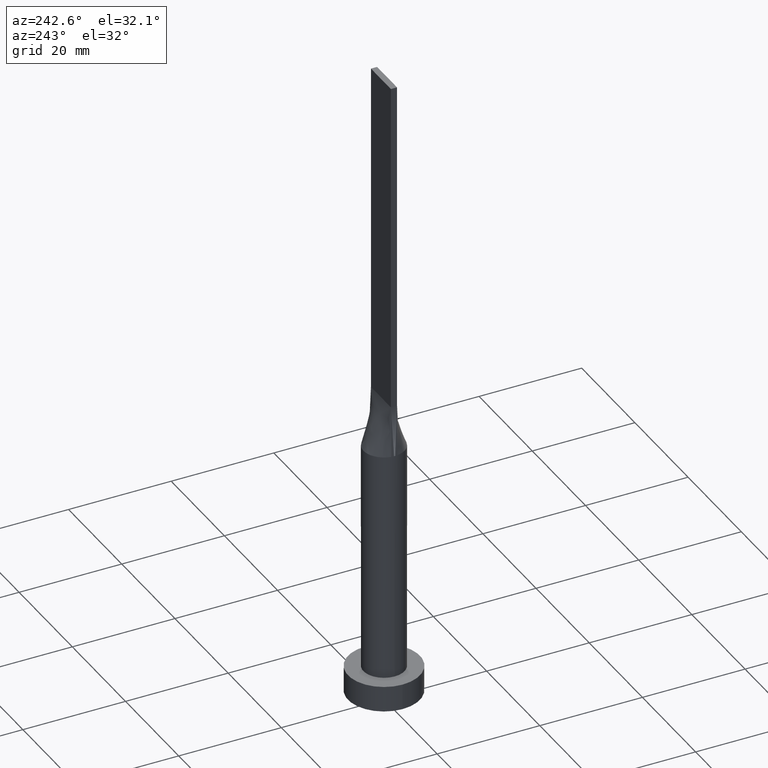
[diagram: clean part render]
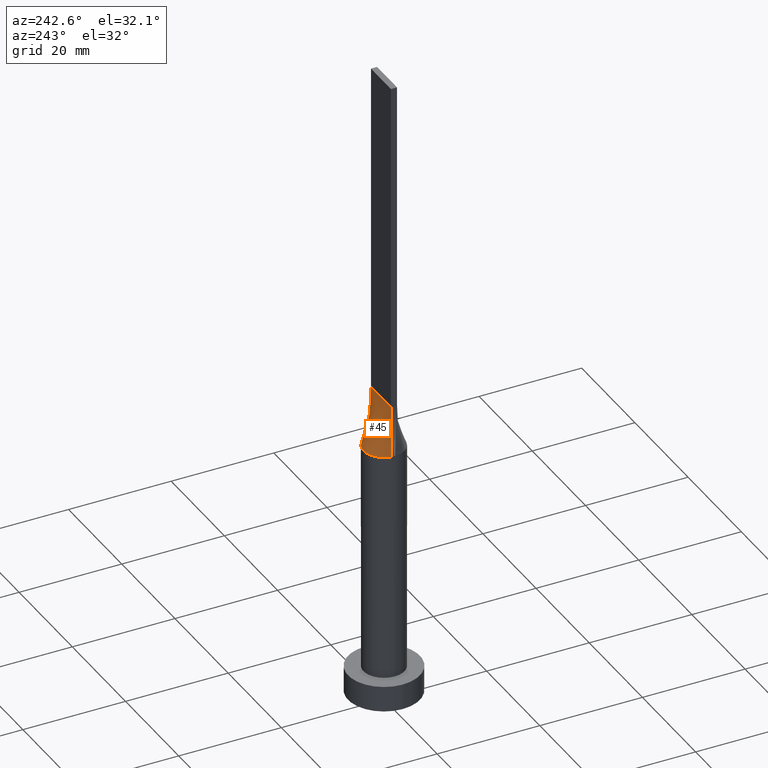
[diagram: same view with one face highlighted and labeled with its STEP entity id]
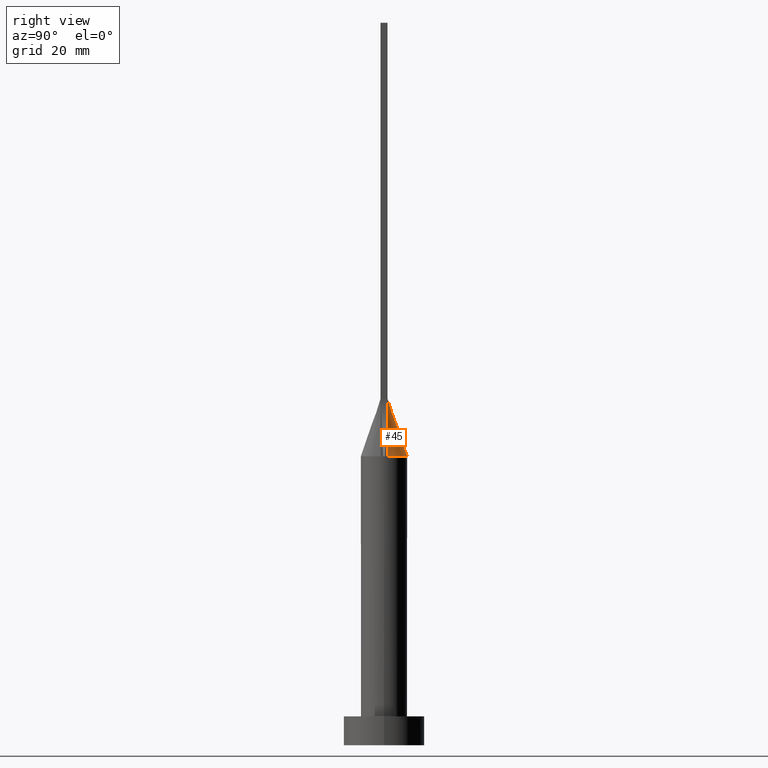
[diagram: same view with one face highlighted and labeled with its STEP entity id]
A machine part, auxiliary view. The second image highlights one B-rep face of the part: STEP entity #45.
A second angle (right view) of the same face is appended — the face is thin or edge-on in the first view.
In plain terms, the highlighted face is a freeform B-spline surface patch.
Its self-contained STEP definition (entity closure, byte-faithful):
#7 = CARTESIAN_POINT ( 'NONE',  ( -2.553164211252348714, 3.116528153703943538, 49.99999999999999289 ) ) ;
#10 = CARTESIAN_POINT ( 'NONE',  ( -3.800365609718893811, 1.311488165564686392, 49.99999999999999289 ) ) ;
#20 = B_SPLINE_SURFACE_WITH_KNOTS ( 'NONE', 3, 1, ( 
 ( #308, #178 ),
 ( #144, #43 ),
 ( #446, #542 ),
 ( #96, #450 ),
 ( #39, #50 ),
 ( #491, #100 ),
 ( #270, #440 ),
 ( #487, #305 ),
 ( #354, #47 ),
 ( #262, #576 ),
 ( #220, #52 ),
 ( #182, #140 ),
 ( #7, #443 ),
 ( #223, #407 ),
 ( #364, #402 ),
 ( #10, #137 ),
 ( #313, #86 ),
 ( #495, #185 ) ),
 .UNSPECIFIED., .F., .F., .F.,
 ( 4, 2, 2, 2, 2, 2, 2, 2, 4 ),
 ( 2, 2 ),
 ( 0.000000000000000000, 0.1249999999999999445, 0.2499999999999998890, 0.3749999999999998335, 0.4999999999999997780, 0.6249999999999997780, 0.7499999999999998890, 0.8749999999999998890, 1.000000000000000000 ),
 ( 0.000000000000000000, 1.000000000000000000 ),
 .UNSPECIFIED. ) ;
#25 = VERTEX_POINT ( 'NONE', #265 ) ;
#33 = CARTESIAN_POINT ( 'NONE',  ( 3.950097303404374038, 0.6320148730971578699, 49.99999999999999289 ) ) ;
#39 = CARTESIAN_POINT ( 'NONE',  ( 3.219262664220058134, 2.422342486356523938, 49.99999999999998579 ) ) ;
#43 = CARTESIAN_POINT ( 'NONE',  ( 3.437500000000000000, 0.6000000000000001998, 60.00000000000000000 ) ) ;
#45 = ADVANCED_FACE ( 'NONE', ( #361 ), #20, .T. ) ;
#46 = DIRECTION ( 'NONE',  ( -0.01997216621675832263, -0.003195546594681161149, 0.9997954296047624201 ) ) ;
#47 = CARTESIAN_POINT ( 'NONE',  ( 0.3125000000000010547, 0.6000000000000000888, 59.99999999999999289 ) ) ;
#48 = CARTESIAN_POINT ( 'NONE',  ( 3.849881263833410561, 0.6159810022133449525, 54.99999999999999289 ) ) ;
#50 = CARTESIAN_POINT ( 'NONE',  ( 2.187500000000000444, 0.6000000000000000888, 59.99999999999999289 ) ) ;
#52 = CARTESIAN_POINT ( 'NONE',  ( -0.6249999999999982236, 0.6000000000000000888, 59.99999999999999289 ) ) ;
#62 = CARTESIAN_POINT ( 'NONE',  ( 2.553164211252348714, 3.116528153703943538, 49.99999999999999289 ) ) ;
#67 = CARTESIAN_POINT ( 'NONE',  ( 3.461914487322979017, 2.043998057340944197, 49.99999999999997158 ) ) ;
#70 = ORIENTED_EDGE ( 'NONE', *, *, #217, .T. ) ;
#78 = CARTESIAN_POINT ( 'NONE',  ( -2.127794970397209884, 3.430476893735948440, 49.99999999999999289 ) ) ;
#86 = CARTESIAN_POINT ( 'NONE',  ( -3.437499999999999556, 0.6000000000000000888, 60.00000000000000000 ) ) ;
#89 = CARTESIAN_POINT ( 'NONE',  ( 3.750000000000000000, 0.6000000000000001998, 60.00000000000000000 ) ) ;
#96 = CARTESIAN_POINT ( 'NONE',  ( 3.461914487322979017, 2.043998057340944197, 49.99999999999997158 ) ) ;
#100 = CARTESIAN_POINT ( 'NONE',  ( 1.562500000000001332, 0.6000000000000000888, 59.99999999999998579 ) ) ;
#105 = CARTESIAN_POINT ( 'NONE',  ( 3.950097303404374038, 0.6320148730971578699, 49.99999999999999289 ) ) ;
#106 = VECTOR ( 'NONE', #499, 1000.000000000000000 ) ;
#107 = EDGE_CURVE ( 'NONE', #25, #282, #558, .T. ) ;
#117 = CARTESIAN_POINT ( 'NONE',  ( -3.800365609718893811, 1.311488165564686392, 49.99999999999999289 ) ) ;
#124 = CARTESIAN_POINT ( 'NONE',  ( 0.5684794080625145130, 4.000000000000000000, 49.99999999999999289 ) ) ;
#135 = VECTOR ( 'NONE', #46, 1000.000000000000000 ) ;
#137 = CARTESIAN_POINT ( 'NONE',  ( -3.124999999999999112, 0.6000000000000000888, 60.00000000000000000 ) ) ;
#140 = CARTESIAN_POINT ( 'NONE',  ( -1.249999999999997780, 0.6000000000000000888, 59.99999999999999289 ) ) ;
#144 = CARTESIAN_POINT ( 'NONE',  ( 3.897760447583618948, 0.9569750049467118380, 50.00000000000000711 ) ) ;
#155 = DIRECTION ( 'NONE',  ( 0.01997216621675832263, -0.003195546594681204517, 0.9997954296047624201 ) ) ;
#162 = CARTESIAN_POINT ( 'NONE',  ( -3.950102418235696522, 0.6320155757311000100, 49.99999999999999289 ) ) ;
#178 = CARTESIAN_POINT ( 'NONE',  ( 3.750000000000000000, 0.6000000000000001998, 60.00000000000000000 ) ) ;
#182 = CARTESIAN_POINT ( 'NONE',  ( -2.127794970397209884, 3.430476893735948440, 49.99999999999999289 ) ) ;
#185 = CARTESIAN_POINT ( 'NONE',  ( -3.750000000000000000, 0.6000000000000001998, 60.00000000000000000 ) ) ;
#206 = CARTESIAN_POINT ( 'NONE',  ( -3.461914487322979905, 2.043998057340944197, 50.00000000000000711 ) ) ;
#217 = EDGE_CURVE ( 'NONE', #288, #25, #434, .T. ) ;
#220 = CARTESIAN_POINT ( 'NONE',  ( -1.134810363096319996, 3.874001625491799938, 50.00000000000000711 ) ) ;
#223 = CARTESIAN_POINT ( 'NONE',  ( -3.219262664220059023, 2.422342486356523938, 49.99999999999998579 ) ) ;
#246 = CARTESIAN_POINT ( 'NONE',  ( -3.897760447583618504, 0.9569750049467115049, 50.00000000000001421 ) ) ;
#262 = CARTESIAN_POINT ( 'NONE',  ( -0.5684794080625158452, 3.999999999999999112, 49.99999999999999289 ) ) ;
#265 = CARTESIAN_POINT ( 'NONE',  ( -3.950102418235696522, 0.6320155757311000100, 49.99999999999999289 ) ) ;
#270 = CARTESIAN_POINT ( 'NONE',  ( 2.127794970397208107, 3.430476893735948885, 49.99999999999998579 ) ) ;
#279 = CARTESIAN_POINT ( 'NONE',  ( 3.219262664220058134, 2.422342486356523938, 49.99999999999998579 ) ) ;
#282 = VERTEX_POINT ( 'NONE', #567 ) ;
#285 = CARTESIAN_POINT ( 'NONE',  ( 3.897760447583618948, 0.9569750049467118380, 50.00000000000000711 ) ) ;
#288 = VERTEX_POINT ( 'NONE', #33 ) ;
#304 = CARTESIAN_POINT ( 'NONE',  ( -3.750000000000000000, 0.6000000000000001998, 60.00000000000000000 ) ) ;
#305 = CARTESIAN_POINT ( 'NONE',  ( 0.6250000000000014433, 0.6000000000000000888, 59.99999999999998579 ) ) ;
#308 = CARTESIAN_POINT ( 'NONE',  ( 3.949762527666821565, 0.6319620044266911485, 49.99999999999999289 ) ) ;
#313 = CARTESIAN_POINT ( 'NONE',  ( -3.897760447583618504, 0.9569750049467115049, 50.00000000000001421 ) ) ;
#327 = CARTESIAN_POINT ( 'NONE',  ( -3.849881263833410561, 0.6159810022133451746, 54.99999999999999289 ) ) ;
#344 = ORIENTED_EDGE ( 'NONE', *, *, #405, .F. ) ;
#354 = CARTESIAN_POINT ( 'NONE',  ( 0.5684794080625145130, 4.000000000000000000, 49.99999999999999289 ) ) ;
#361 = FACE_OUTER_BOUND ( 'NONE', #436, .T. ) ;
#364 = CARTESIAN_POINT ( 'NONE',  ( -3.461914487322979905, 2.043998057340944197, 50.00000000000000711 ) ) ;
#379 = CARTESIAN_POINT ( 'NONE',  ( -1.134810363096319996, 3.874001625491799938, 50.00000000000000711 ) ) ;
#393 = LINE ( 'NONE', #304, #106 ) ;
#402 = CARTESIAN_POINT ( 'NONE',  ( -2.499999999999998668, 0.6000000000000000888, 60.00000000000000000 ) ) ;
#405 = EDGE_CURVE ( 'NONE', #288, #437, #533, .T. ) ;
#407 = CARTESIAN_POINT ( 'NONE',  ( -2.187499999999998668, 0.6000000000000000888, 60.00000000000000000 ) ) ;
#415 = CARTESIAN_POINT ( 'NONE',  ( 1.134810363096318664, 3.874001625491799050, 49.99999999999999289 ) ) ;
#432 = ORIENTED_EDGE ( 'NONE', *, *, #488, .F. ) ;
#434 = B_SPLINE_CURVE_WITH_KNOTS ( 'NONE', 3,
 ( #105, #285, #466, #67, #279, #62, #461, #415, #124, #483, #379, #78, #560, #520, #206, #117, #246, #162 ),
 .UNSPECIFIED., .F., .F.,
 ( 4, 2, 2, 2, 2, 2, 2, 2, 4 ),
 ( 0.000000000000000000, 0.1249999999999999445, 0.2499999999999998890, 0.3749999999999998335, 0.4999999999999997780, 0.6249999999999997780, 0.7499999999999998890, 0.8749999999999998890, 1.000000000000000000 ),
 .UNSPECIFIED. ) ;
#436 = EDGE_LOOP ( 'NONE', ( #70, #508, #432, #344 ) ) ;
#437 = VERTEX_POINT ( 'NONE', #89 ) ;
#440 = CARTESIAN_POINT ( 'NONE',  ( 1.250000000000001554, 0.6000000000000000888, 59.99999999999998579 ) ) ;
#443 = CARTESIAN_POINT ( 'NONE',  ( -1.562499999999998224, 0.6000000000000000888, 59.99999999999999289 ) ) ;
#446 = CARTESIAN_POINT ( 'NONE',  ( 3.800365609718893367, 1.311488165564687058, 49.99999999999998579 ) ) ;
#450 = CARTESIAN_POINT ( 'NONE',  ( 2.500000000000000444, 0.6000000000000000888, 59.99999999999999289 ) ) ;
#461 = CARTESIAN_POINT ( 'NONE',  ( 2.127794970397208107, 3.430476893735948885, 49.99999999999998579 ) ) ;
#466 = CARTESIAN_POINT ( 'NONE',  ( 3.800365609718893367, 1.311488165564687058, 49.99999999999998579 ) ) ;
#483 = CARTESIAN_POINT ( 'NONE',  ( -0.5684794080625158452, 3.999999999999999112, 49.99999999999999289 ) ) ;
#487 = CARTESIAN_POINT ( 'NONE',  ( 1.134810363096318664, 3.874001625491799050, 49.99999999999999289 ) ) ;
#488 = EDGE_CURVE ( 'NONE', #437, #282, #393, .T. ) ;
#491 = CARTESIAN_POINT ( 'NONE',  ( 2.553164211252348714, 3.116528153703943538, 49.99999999999999289 ) ) ;
#495 = CARTESIAN_POINT ( 'NONE',  ( -3.949762527666821565, 0.6319620044266903713, 49.99999999999999289 ) ) ;
#499 = DIRECTION ( 'NONE',  ( -1.000000000000000000, -0.000000000000000000, -0.000000000000000000 ) ) ;
#508 = ORIENTED_EDGE ( 'NONE', *, *, #107, .T. ) ;
#520 = CARTESIAN_POINT ( 'NONE',  ( -3.219262664220059023, 2.422342486356523938, 49.99999999999998579 ) ) ;
#533 = LINE ( 'NONE', #48, #135 ) ;
#542 = CARTESIAN_POINT ( 'NONE',  ( 3.125000000000000000, 0.6000000000000001998, 60.00000000000000000 ) ) ;
#558 = LINE ( 'NONE', #327, #566 ) ;
#560 = CARTESIAN_POINT ( 'NONE',  ( -2.553164211252348714, 3.116528153703943538, 49.99999999999999289 ) ) ;
#566 = VECTOR ( 'NONE', #155, 1000.000000000000000 ) ;
#567 = CARTESIAN_POINT ( 'NONE',  ( -3.750000000000000000, 0.6000000000000001998, 60.00000000000000000 ) ) ;
#576 = CARTESIAN_POINT ( 'NONE',  ( -0.3124999999999986677, 0.6000000000000000888, 59.99999999999999289 ) ) ;